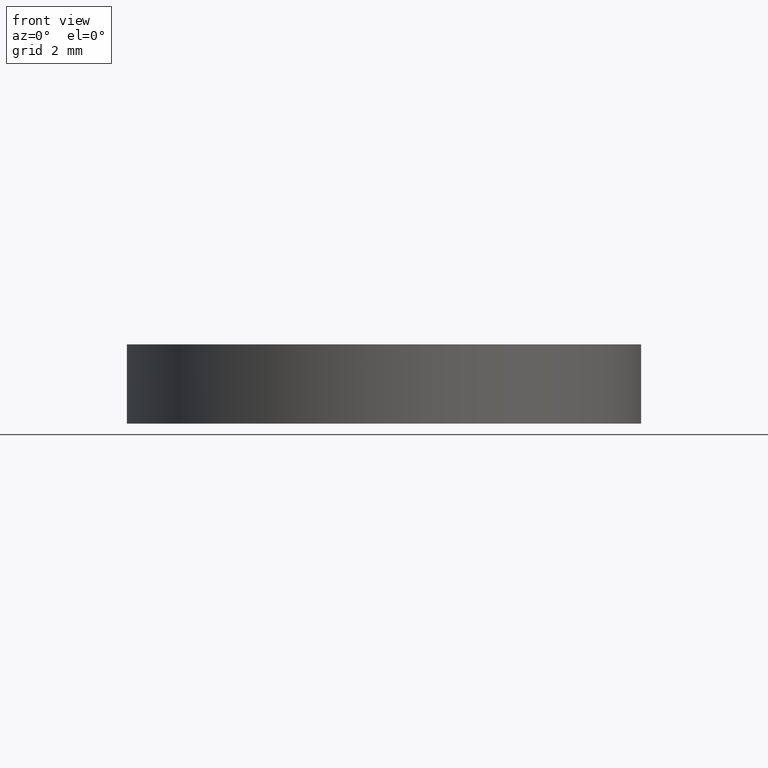
[diagram: clean part render]
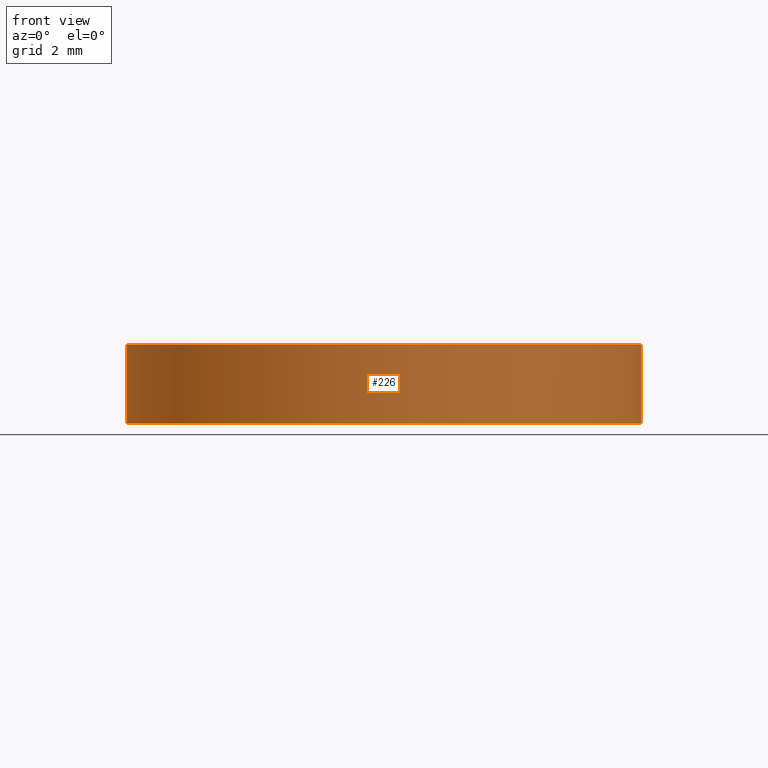
[diagram: same view with one face highlighted and labeled with its STEP entity id]
A machine part, front view. The second image highlights one B-rep face of the part: STEP entity #226.
In plain terms, the highlighted cylindrical surface (partial cylindrical patch) has radius 6.35 mm, axis along (0, 0, 1).
Its self-contained STEP definition (entity closure, byte-faithful):
#5 = CARTESIAN_POINT ( 'NONE',  ( 6.349999999999999600, 1.221245327087670000E-015, -0.07764445256259830400 ) ) ;
#12 = VERTEX_POINT ( 'NONE', #107 ) ;
#13 = AXIS2_PLACEMENT_3D ( 'NONE', #114, #276, #89 ) ;
#16 = ORIENTED_EDGE ( 'NONE', *, *, #109, .T. ) ;
#21 = CARTESIAN_POINT ( 'NONE',  ( 9.519578976003125300E-014, -6.349999999999807800, 1.877644452562605000 ) ) ;
#26 = EDGE_LOOP ( 'NONE', ( #60, #111, #16, #281, #49, #139 ) ) ;
#31 = AXIS2_PLACEMENT_3D ( 'NONE', #148, #118, #45 ) ;
#38 = EDGE_CURVE ( 'NONE', #197, #12, #202, .T. ) ;
#40 = FACE_OUTER_BOUND ( 'NONE', #26, .T. ) ;
#45 = DIRECTION ( 'NONE',  ( 1.000000000000000000, 0.0000000000000000000, 0.0000000000000000000 ) ) ;
#49 = ORIENTED_EDGE ( 'NONE', *, *, #100, .T. ) ;
#60 = ORIENTED_EDGE ( 'NONE', *, *, #38, .F. ) ;
#61 = DIRECTION ( 'NONE',  ( -0.0000000000000000000, -0.0000000000000000000, -1.000000000000000000 ) ) ;
#62 = DIRECTION ( 'NONE',  ( 0.0000000000000000000, 0.0000000000000000000, 1.000000000000000000 ) ) ;
#65 = AXIS2_PLACEMENT_3D ( 'NONE', #203, #62, #185 ) ;
#68 = VECTOR ( 'NONE', #138, 1000.000000000000000 ) ;
#80 = CARTESIAN_POINT ( 'NONE',  ( -6.349999999999999600, 1.998896044546239400E-015, -0.07764445256259830400 ) ) ;
#88 = DIRECTION ( 'NONE',  ( 1.000000000000000000, 0.0000000000000000000, 0.0000000000000000000 ) ) ;
#89 = DIRECTION ( 'NONE',  ( 1.000000000000000000, 0.0000000000000000000, 0.0000000000000000000 ) ) ;
#91 = LINE ( 'NONE', #113, #180 ) ;
#94 = VERTEX_POINT ( 'NONE', #158 ) ;
#99 = CIRCLE ( 'NONE', #65, 6.349999999999999600 ) ;
#100 = EDGE_CURVE ( 'NONE', #131, #222, #238, .T. ) ;
#107 = CARTESIAN_POINT ( 'NONE',  ( -6.349999999999999600, 1.998896044546239400E-015, 1.877644452562599900 ) ) ;
#109 = EDGE_CURVE ( 'NONE', #94, #219, #170, .T. ) ;
#111 = ORIENTED_EDGE ( 'NONE', *, *, #132, .T. ) ;
#112 = DIRECTION ( 'NONE',  ( -0.0000000000000000000, -0.0000000000000000000, -1.000000000000000000 ) ) ;
#113 = CARTESIAN_POINT ( 'NONE',  ( 6.349999999999999600, 1.221245327087670000E-015, -0.07764445256259830400 ) ) ;
#114 = CARTESIAN_POINT ( 'NONE',  ( 2.498001805406600200E-016, 1.221245327087670000E-015, -0.07764445256259830400 ) ) ;
#117 = CARTESIAN_POINT ( 'NONE',  ( 2.498001805406600200E-016, 1.221245327087670000E-015, 1.877644452562599900 ) ) ;
#118 = DIRECTION ( 'NONE',  ( 0.0000000000000000000, 0.0000000000000000000, 1.000000000000000000 ) ) ;
#120 = CYLINDRICAL_SURFACE ( 'NONE', #31, 6.349999999999999600 ) ;
#131 = VERTEX_POINT ( 'NONE', #201 ) ;
#132 = EDGE_CURVE ( 'NONE', #197, #94, #99, .T. ) ;
#138 = DIRECTION ( 'NONE',  ( 0.0000000000000000000, 0.0000000000000000000, 1.000000000000000000 ) ) ;
#139 = ORIENTED_EDGE ( 'NONE', *, *, #147, .T. ) ;
#147 = EDGE_CURVE ( 'NONE', #222, #12, #234, .T. ) ;
#148 = CARTESIAN_POINT ( 'NONE',  ( 2.498001805406600200E-016, 1.221245327087670000E-015, -0.07764445256259830400 ) ) ;
#158 = CARTESIAN_POINT ( 'NONE',  ( -9.519578976003126600E-014, -6.349999999999807800, -0.07764445256259233700 ) ) ;
#163 = EDGE_CURVE ( 'NONE', #219, #131, #91, .T. ) ;
#170 = CIRCLE ( 'NONE', #13, 6.349999999999999600 ) ;
#180 = VECTOR ( 'NONE', #275, 1000.000000000000000 ) ;
#181 = DIRECTION ( 'NONE',  ( 1.000000000000000000, 0.0000000000000000000, 0.0000000000000000000 ) ) ;
#185 = DIRECTION ( 'NONE',  ( 1.000000000000000000, 0.0000000000000000000, 0.0000000000000000000 ) ) ;
#191 = CARTESIAN_POINT ( 'NONE',  ( -6.349999999999999600, 1.998896044546239400E-015, -0.07764445256259830400 ) ) ;
#197 = VERTEX_POINT ( 'NONE', #191 ) ;
#201 = CARTESIAN_POINT ( 'NONE',  ( 6.349999999999999600, 1.221245327087670000E-015, 1.877644452562599900 ) ) ;
#202 = LINE ( 'NONE', #80, #68 ) ;
#203 = CARTESIAN_POINT ( 'NONE',  ( 2.498001805406600200E-016, 1.221245327087670000E-015, -0.07764445256259830400 ) ) ;
#219 = VERTEX_POINT ( 'NONE', #5 ) ;
#222 = VERTEX_POINT ( 'NONE', #21 ) ;
#226 = ADVANCED_FACE ( 'NONE', ( #40 ), #120, .T. ) ;
#228 = CARTESIAN_POINT ( 'NONE',  ( 2.498001805406600200E-016, 1.221245327087670000E-015, 1.877644452562599900 ) ) ;
#234 = CIRCLE ( 'NONE', #269, 6.349999999999999600 ) ;
#238 = CIRCLE ( 'NONE', #293, 6.349999999999999600 ) ;
#269 = AXIS2_PLACEMENT_3D ( 'NONE', #117, #61, #181 ) ;
#275 = DIRECTION ( 'NONE',  ( 0.0000000000000000000, 0.0000000000000000000, 1.000000000000000000 ) ) ;
#276 = DIRECTION ( 'NONE',  ( 0.0000000000000000000, 0.0000000000000000000, 1.000000000000000000 ) ) ;
#281 = ORIENTED_EDGE ( 'NONE', *, *, #163, .T. ) ;
#293 = AXIS2_PLACEMENT_3D ( 'NONE', #228, #112, #88 ) ;